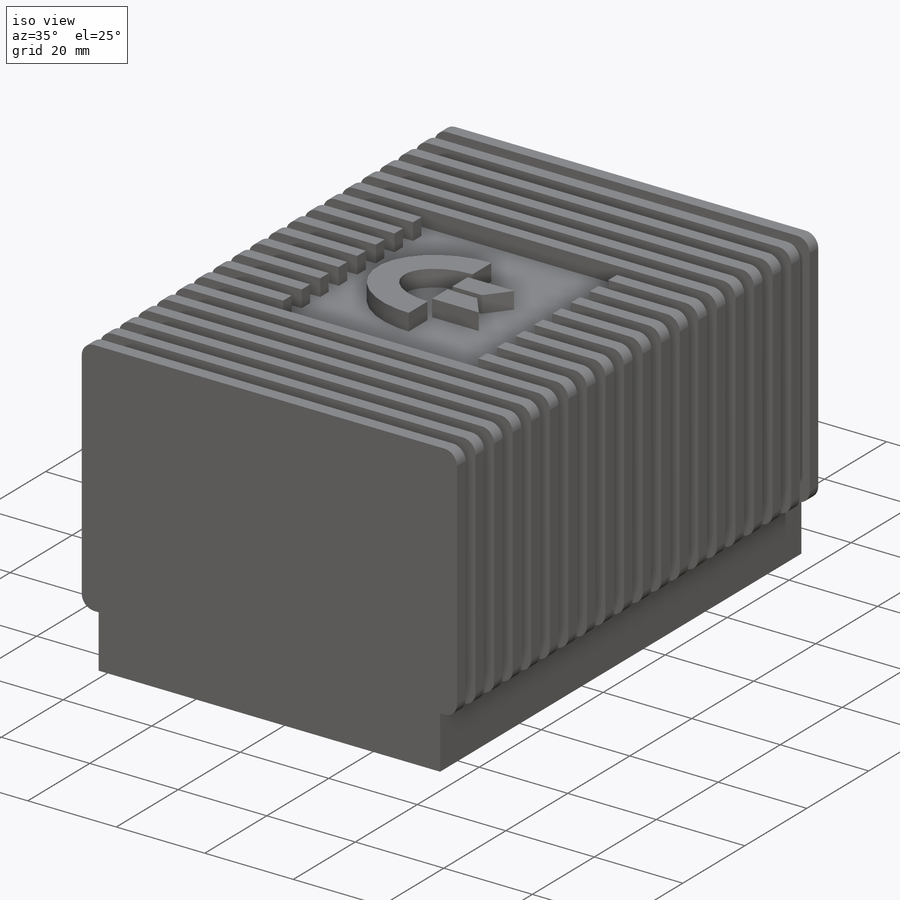
[diagram: iso view]
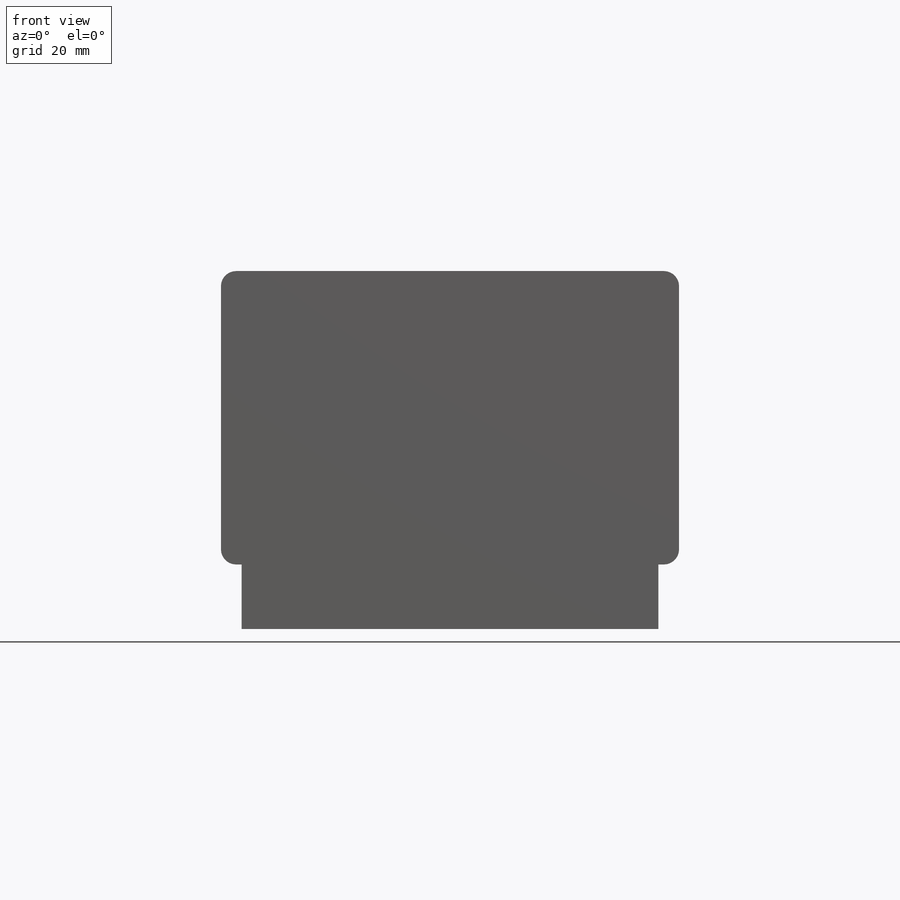
[diagram: front view]
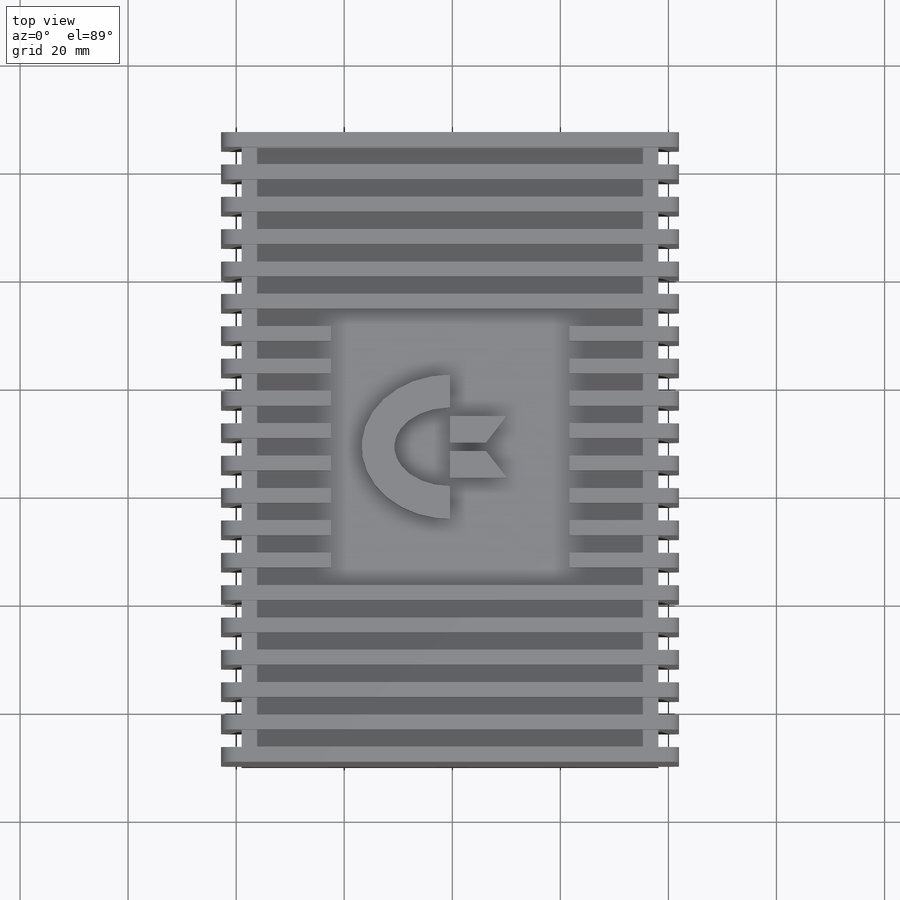
[diagram: top view]
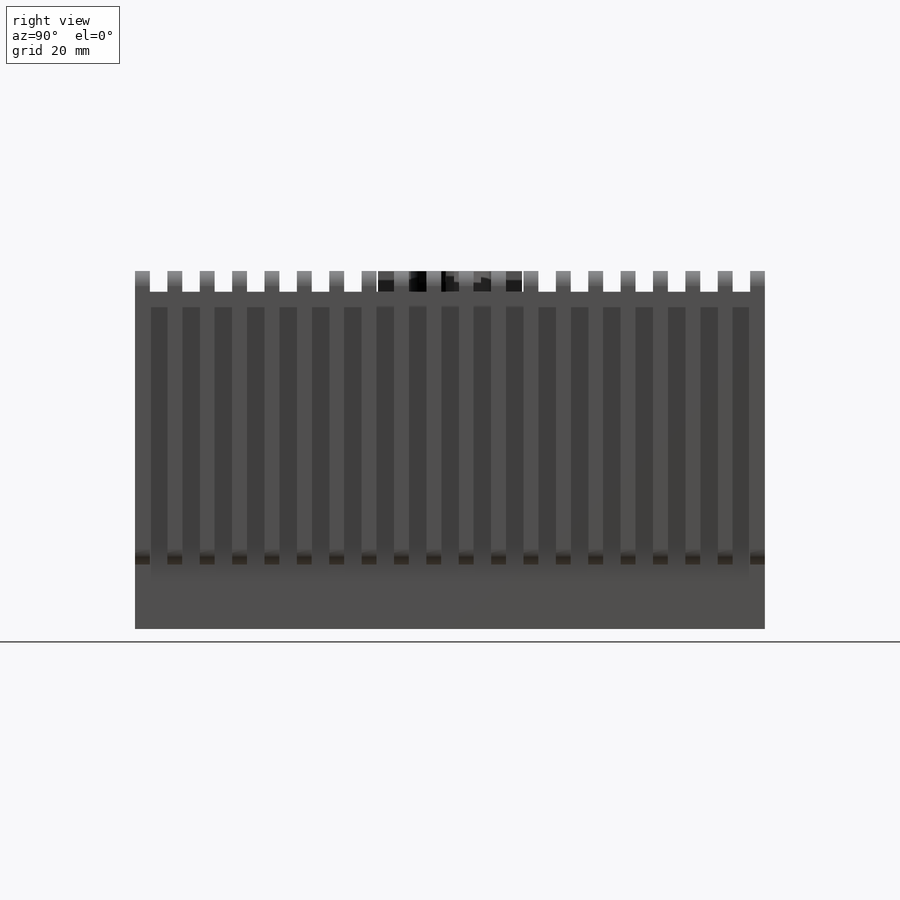
[diagram: right view]
SOLIDWORKS PART (.sldprt)
format: sldprt  version: not decoded by parser v0  size: 1,227,264 bytes
history: native  units: mm
features: sketch x6, extrude x3, plane x2, shell x2, fillet x2, material x1, pattern_linear x1, cut_extrude x1, move_body x1 (+12 scaffold rows collapsed)
feature tree (31):
  scaffold x12  (default folders/planes/origin — collapsed)
  material  "Material <not specified>"
  sketch  "Sketch1"  dims[D1=116.58mm D2=77.15mm]
  extrude  "Boss-Extrude1"  Depth=62.42mm
  sketch  "Sketch4"  dims[D1=2.8mm D2=2.8mm D3=2.8mm D4=2.8mm D5=3.82mm]
  extrude  "Boss-Extrude3"  Depth=2.75mm
  pattern_linear  "LPattern2"  Count1=20 Count2=1 Spacing1=5.991053mm Spacing2=10mm
  plane  "Plane1"  Offset=0mm
  sketch  "Sketch5"  dims[D1=50.67mm D2=44.15mm]
  cut_extrude  "Cut-Extrude1"  Depth=10mm
  sketch  "Sketch6"  dims[D1=0.775mm D2=0.775mm D3=6.06mm D4=10.3mm D5=1.55mm D6=1.55mm D7=~6.283263mm D8=4.95mm D9=6.65mm D10=10.52mm D11=6.06mm]
  extrude  "Boss-Extrude4"  Depth=3.8mm
  plane  "Plane2"  Offset=31.21mm
  shell  "Shell2"  Thickness=2mm
  shell  "Shell4"  Thickness=3mm
  fillet  "Fillet5"  Radius=5mm
  fillet  "Fillet6"  Radius=5mm
  sketch  "Sketch8"  dims[D1=11.93mm]
  sketch  "Sketch9"
  move_body  "Body-Move/Copy1"
decode coverage: 14 of 16 modeling features carry decoded parameters
note: ~ marks probable driven/reference dimensions
note: suppression state not decoded; provenance and decode notes live in map.json
